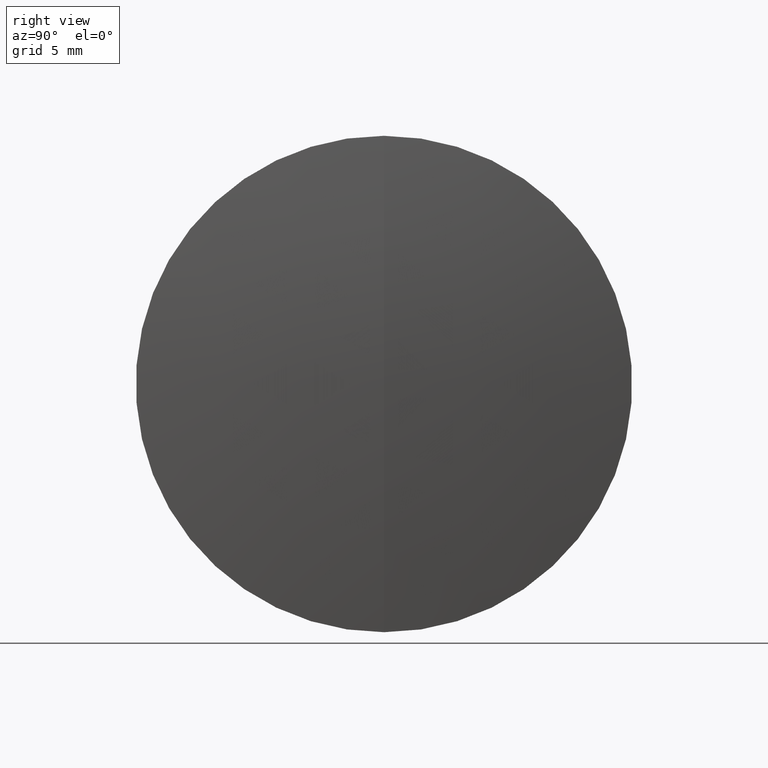
[diagram: clean part render]
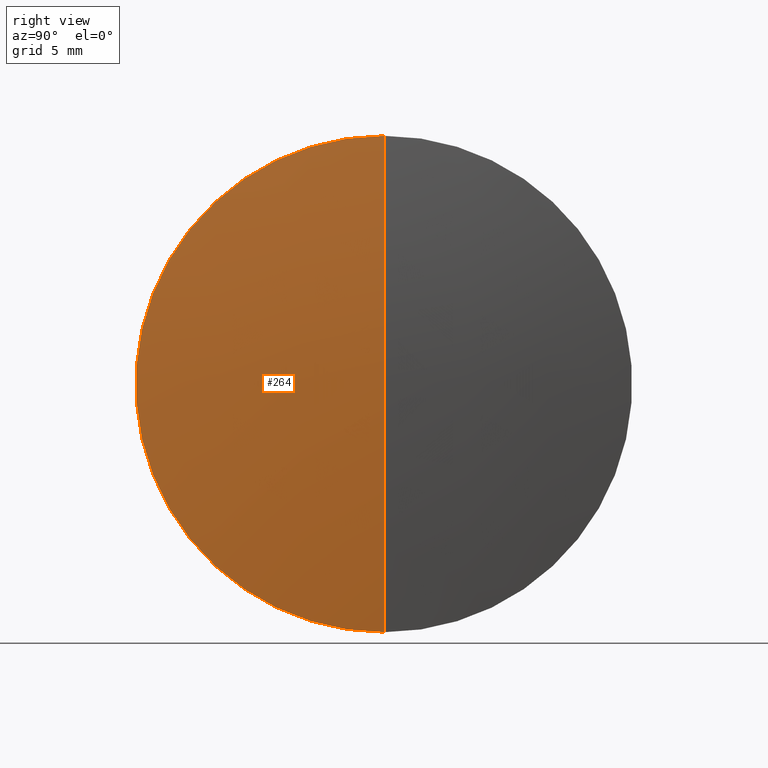
[diagram: same view with one face highlighted and labeled with its STEP entity id]
A machine part, right view. The second image highlights one B-rep face of the part: STEP entity #264.
In plain terms, the highlighted spherical surface has radius 97.5 mm.
Its self-contained STEP definition (entity closure, byte-faithful):
#5 = DIRECTION ( 'NONE',  ( 0.0000000000000000000, -1.000000000000000000, 0.0000000000000000000 ) ) ;
#12 = DIRECTION ( 'NONE',  ( 0.0000000000000000000, 0.0000000000000000000, 1.000000000000000000 ) ) ;
#16 = DIRECTION ( 'NONE',  ( 0.0000000000000000000, 0.0000000000000000000, -1.000000000000000000 ) ) ;
#23 = DIRECTION ( 'NONE',  ( 0.0000000000000000000, 1.000000000000000000, 0.0000000000000000000 ) ) ;
#34 = VERTEX_POINT ( 'NONE', #283 ) ;
#54 = VERTEX_POINT ( 'NONE', #173 ) ;
#55 = CIRCLE ( 'NONE', #326, 97.50000000000000000 ) ;
#71 = FACE_OUTER_BOUND ( 'NONE', #88, .T. ) ;
#82 = EDGE_CURVE ( 'NONE', #343, #54, #156, .T. ) ;
#88 = EDGE_LOOP ( 'NONE', ( #181, #234, #218 ) ) ;
#102 = CARTESIAN_POINT ( 'NONE',  ( -58.74033102642527400, 0.0000000000000000000, 0.0000000000000000000 ) ) ;
#120 = DIRECTION ( 'NONE',  ( -0.0000000000000000000, 1.000000000000000000, 1.224646799147353200E-016 ) ) ;
#147 = DIRECTION ( 'NONE',  ( 0.0000000000000000000, -1.224646799147353200E-016, 1.000000000000000000 ) ) ;
#152 = CIRCLE ( 'NONE', #265, 12.49999999999999800 ) ;
#156 = CIRCLE ( 'NONE', #252, 97.50000000000000000 ) ;
#173 = CARTESIAN_POINT ( 'NONE',  ( 37.95506700264331100, 1.530808498934191700E-015, -12.49999999999999800 ) ) ;
#178 = EDGE_CURVE ( 'NONE', #343, #34, #55, .T. ) ;
#181 = ORIENTED_EDGE ( 'NONE', *, *, #82, .F. ) ;
#217 = CARTESIAN_POINT ( 'NONE',  ( -58.74033102642527400, 0.0000000000000000000, 0.0000000000000000000 ) ) ;
#218 = ORIENTED_EDGE ( 'NONE', *, *, #320, .F. ) ;
#231 = DIRECTION ( 'NONE',  ( 0.0000000000000000000, 0.0000000000000000000, 1.000000000000000000 ) ) ;
#234 = ORIENTED_EDGE ( 'NONE', *, *, #178, .T. ) ;
#241 = SPHERICAL_SURFACE ( 'NONE', #291, 97.50000000000000000 ) ;
#251 = DIRECTION ( 'NONE',  ( -1.000000000000000000, -0.0000000000000000000, -0.0000000000000000000 ) ) ;
#252 = AXIS2_PLACEMENT_3D ( 'NONE', #102, #120, #147 ) ;
#264 = ADVANCED_FACE ( 'NONE', ( #71 ), #241, .T. ) ;
#265 = AXIS2_PLACEMENT_3D ( 'NONE', #295, #251, #231 ) ;
#283 = CARTESIAN_POINT ( 'NONE',  ( 37.95506700264331100, 0.0000000000000000000, 12.49999999999999800 ) ) ;
#291 = AXIS2_PLACEMENT_3D ( 'NONE', #217, #23, #12 ) ;
#295 = CARTESIAN_POINT ( 'NONE',  ( 37.95506700264331100, 0.0000000000000000000, 0.0000000000000000000 ) ) ;
#320 = EDGE_CURVE ( 'NONE', #54, #34, #152, .T. ) ;
#326 = AXIS2_PLACEMENT_3D ( 'NONE', #328, #5, #16 ) ;
#328 = CARTESIAN_POINT ( 'NONE',  ( -58.74033102642527400, 0.0000000000000000000, 0.0000000000000000000 ) ) ;
#343 = VERTEX_POINT ( 'NONE', #344 ) ;
#344 = CARTESIAN_POINT ( 'NONE',  ( 38.75966897357473300, 0.0000000000000000000, 5.970153145843347100E-015 ) ) ;